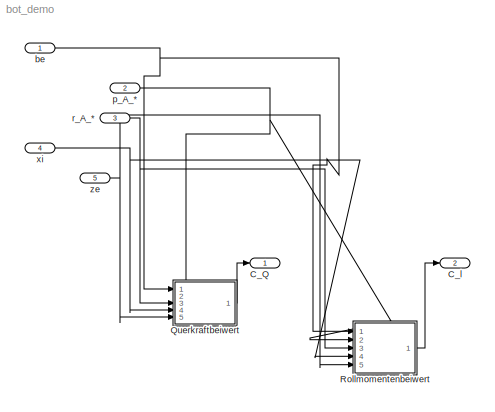
MODEL bot_demo
KIND model
BLOCK [Outport] C_Q
  IconDisplay = Port number
  InitialOutput = 0
  SID = 158
BLOCK [Outport] C_l
  IconDisplay = Port number
  InitialOutput = 0
  Port = 2
  SID = 159
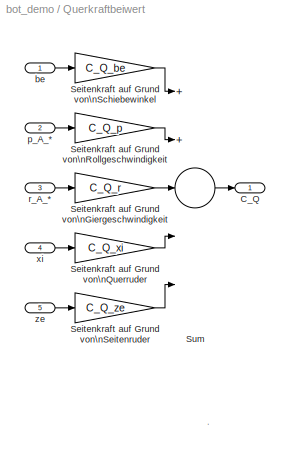
BLOCK [SubSystem] Querkraftbeiwert
  Ports = [5, 1]
  RequestExecContextInheritance = off
  SID = 132
BLOCK [Outport] Querkraftbeiwert/C_Q
  IconDisplay = Port number
  InitialOutput = 0
  SID = 144
BLOCK [Gain] Querkraftbeiwert/Seitenkraft auf Grund von\nGiergeschwindigkeit
  Gain = C_Q_r
  SID = 138
BLOCK [Gain] Querkraftbeiwert/Seitenkraft auf Grund von\nQuerruder
  Gain = C_Q_xi
  SID = 139
BLOCK [Gain] Querkraftbeiwert/Seitenkraft auf Grund von\nRollgeschwindigkeit
  Gain = C_Q_p
  SID = 140
BLOCK [Gain] Querkraftbeiwert/Seitenkraft auf Grund von\nSchiebewinkel
  Gain = C_Q_be
  SID = 141
BLOCK [Gain] Querkraftbeiwert/Seitenkraft auf Grund von\nSeitenruder
  Gain = C_Q_ze
  SID = 142
BLOCK [Sum] Querkraftbeiwert/Sum
  Inputs = 5
  Ports = [5, 1]
  SID = 143
BLOCK [Inport] Querkraftbeiwert/be
  IconDisplay = Port number
  SID = 133
BLOCK [Inport] Querkraftbeiwert/p_A_*
  IconDisplay = Port number
  Port = 2
  SID = 134
BLOCK [Inport] Querkraftbeiwert/r_A_*
  IconDisplay = Port number
  Port = 3
  SID = 135
BLOCK [Inport] Querkraftbeiwert/xi
  IconDisplay = Port number
  Port = 4
  SID = 136
BLOCK [Inport] Querkraftbeiwert/ze
  IconDisplay = Port number
  Port = 5
  SID = 137
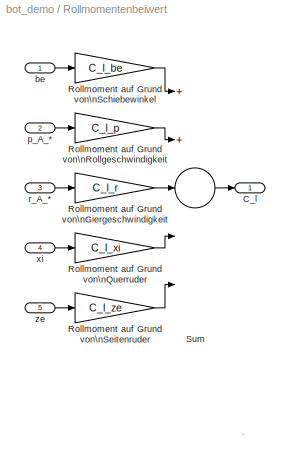
BLOCK [SubSystem] Rollmomentenbeiwert
  Ports = [5, 1]
  RequestExecContextInheritance = off
  SID = 145
BLOCK [Outport] Rollmomentenbeiwert/C_l
  IconDisplay = Port number
  InitialOutput = 0
  SID = 157
BLOCK [Gain] Rollmomentenbeiwert/Rollmoment auf Grund von\nGiergeschwindigkeit
  Gain = C_l_r
  SID = 151
BLOCK [Gain] Rollmomentenbeiwert/Rollmoment auf Grund von\nQuerruder
  Gain = C_l_xi
  SID = 152
BLOCK [Gain] Rollmomentenbeiwert/Rollmoment auf Grund von\nRollgeschwindigkeit
  Gain = C_l_p
  SID = 153
BLOCK [Gain] Rollmomentenbeiwert/Rollmoment auf Grund von\nSchiebewinkel
  Gain = C_l_be
  SID = 154
BLOCK [Gain] Rollmomentenbeiwert/Rollmoment auf Grund von\nSeitenruder
  Gain = C_l_ze
  SID = 155
BLOCK [Sum] Rollmomentenbeiwert/Sum
  Inputs = 5
  Ports = [5, 1]
  SID = 156
BLOCK [Inport] Rollmomentenbeiwert/be
  IconDisplay = Port number
  SID = 146
BLOCK [Inport] Rollmomentenbeiwert/p_A_*
  IconDisplay = Port number
  Port = 2
  SID = 147
BLOCK [Inport] Rollmomentenbeiwert/r_A_*
  IconDisplay = Port number
  Port = 3
  SID = 148
BLOCK [Inport] Rollmomentenbeiwert/xi
  IconDisplay = Port number
  Port = 4
  SID = 149
BLOCK [Inport] Rollmomentenbeiwert/ze
  IconDisplay = Port number
  Port = 5
  SID = 150
BLOCK [Inport] be
  IconDisplay = Port number
  SID = 114
BLOCK [Inport] p_A_*
  IconDisplay = Port number
  Port = 2
  SID = 115
BLOCK [Inport] r_A_*
  IconDisplay = Port number
  Port = 3
  SID = 116
BLOCK [Inport] xi
  IconDisplay = Port number
  Port = 4
  SID = 117
BLOCK [Inport] ze
  IconDisplay = Port number
  Port = 5
  SID = 118
ANNOTATION Querkraftbeiwert: .
ANNOTATION Rollmomentenbeiwert: .
LINE Querkraftbeiwert/Seitenkraft auf Grund von\nGiergeschwindigkeit:1 -> Querkraftbeiwert/Sum:3
LINE Querkraftbeiwert/Seitenkraft auf Grund von\nQuerruder:1 -> Querkraftbeiwert/Sum:4
LINE Querkraftbeiwert/Seitenkraft auf Grund von\nRollgeschwindigkeit:1 -> Querkraftbeiwert/Sum:2
LINE Querkraftbeiwert/Seitenkraft auf Grund von\nSchiebewinkel:1 -> Querkraftbeiwert/Sum:1
LINE Querkraftbeiwert/Seitenkraft auf Grund von\nSeitenruder:1 -> Querkraftbeiwert/Sum:5
LINE Querkraftbeiwert/Sum:1 -> Querkraftbeiwert/C_Q:1
LINE Querkraftbeiwert/be:1 -> Querkraftbeiwert/Seitenkraft auf Grund von\nSchiebewinkel:1
LINE Querkraftbeiwert/p_A_*:1 -> Querkraftbeiwert/Seitenkraft auf Grund von\nRollgeschwindigkeit:1
LINE Querkraftbeiwert/r_A_*:1 -> Querkraftbeiwert/Seitenkraft auf Grund von\nGiergeschwindigkeit:1
LINE Querkraftbeiwert/xi:1 -> Querkraftbeiwert/Seitenkraft auf Grund von\nQuerruder:1
LINE Querkraftbeiwert/ze:1 -> Querkraftbeiwert/Seitenkraft auf Grund von\nSeitenruder:1
LINE Querkraftbeiwert:1 -> C_Q:1
LINE Rollmomentenbeiwert/Rollmoment auf Grund von\nGiergeschwindigkeit:1 -> Rollmomentenbeiwert/Sum:3
LINE Rollmomentenbeiwert/Rollmoment auf Grund von\nQuerruder:1 -> Rollmomentenbeiwert/Sum:4
LINE Rollmomentenbeiwert/Rollmoment auf Grund von\nRollgeschwindigkeit:1 -> Rollmomentenbeiwert/Sum:2
LINE Rollmomentenbeiwert/Rollmoment auf Grund von\nSchiebewinkel:1 -> Rollmomentenbeiwert/Sum:1
LINE Rollmomentenbeiwert/Rollmoment auf Grund von\nSeitenruder:1 -> Rollmomentenbeiwert/Sum:5
LINE Rollmomentenbeiwert/Sum:1 -> Rollmomentenbeiwert/C_l:1
LINE Rollmomentenbeiwert/be:1 -> Rollmomentenbeiwert/Rollmoment auf Grund von\nSchiebewinkel:1
LINE Rollmomentenbeiwert/p_A_*:1 -> Rollmomentenbeiwert/Rollmoment auf Grund von\nRollgeschwindigkeit:1
LINE Rollmomentenbeiwert/r_A_*:1 -> Rollmomentenbeiwert/Rollmoment auf Grund von\nGiergeschwindigkeit:1
LINE Rollmomentenbeiwert/xi:1 -> Rollmomentenbeiwert/Rollmoment auf Grund von\nQuerruder:1
LINE Rollmomentenbeiwert/ze:1 -> Rollmomentenbeiwert/Rollmoment auf Grund von\nSeitenruder:1
LINE Rollmomentenbeiwert:1 -> C_l:1
NET be:1 -> Querkraftbeiwert:1, Rollmomentenbeiwert:1
NET p_A_*:1 -> Querkraftbeiwert:2, Rollmomentenbeiwert:2
NET r_A_*:1 -> Querkraftbeiwert:3, Rollmomentenbeiwert:3
NET xi:1 -> Querkraftbeiwert:4, Rollmomentenbeiwert:4
NET ze:1 -> Querkraftbeiwert:5, Rollmomentenbeiwert:5
note: NET lines group one-source signal fan-out (src -> all destinations, sorted); 1:1 wires keep LINE
